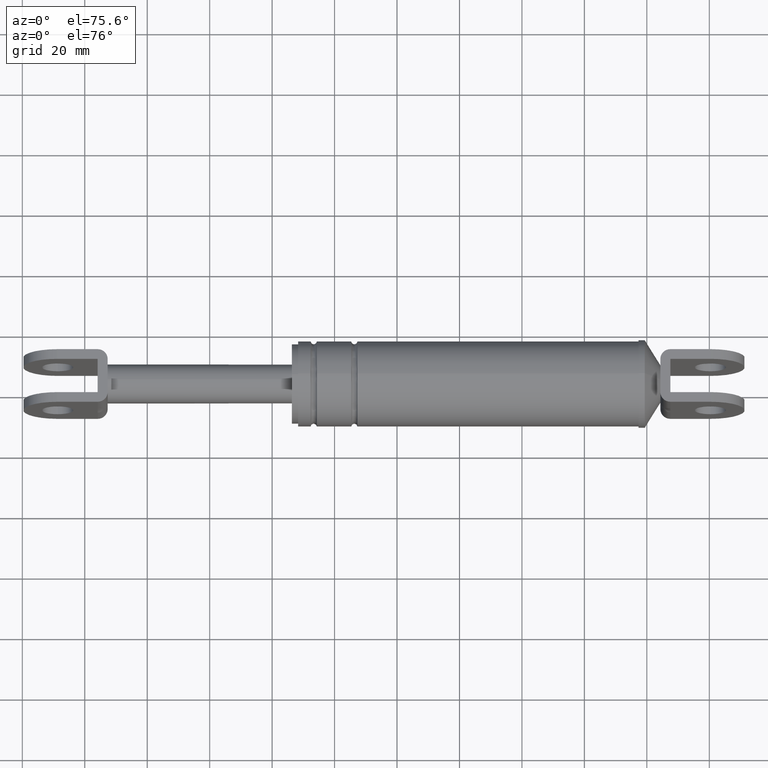
[diagram: clean part render]
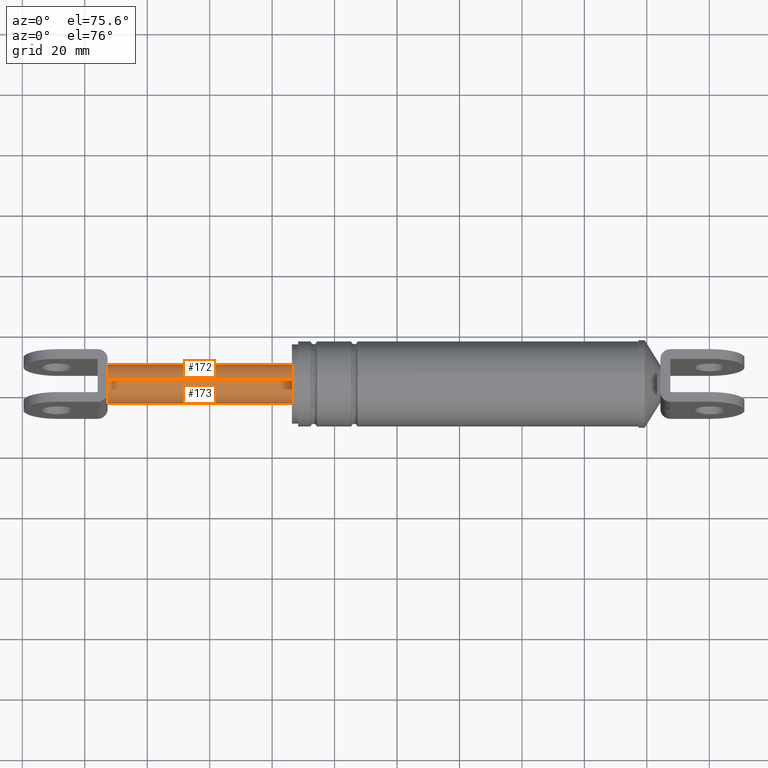
[diagram: same view with one multi-face feature highlighted, each face labeled with its STEP entity id]
A machine part, auxiliary view. The highlighted faces form ONE feature: a constant-radius fillet chain: 2 tangent blend faces with common blend radius 6.25 mm. The faces share edges in the B-rep.
Their STEP definitions:
[1] entity #173 (Cylinder):
#173=ADVANCED_FACE('',(#797),#796,.T.);
#796=CYLINDRICAL_SURFACE('',#1384,6.25000000000E+000);
#797=FACE_OUTER_BOUND('',#1385,.T.);
#1381=CARTESIAN_POINT('',(0.00000000000E+000,0.00000000000E+000,1.86691405396E+002));
#1382=DIRECTION('',(1.00000000000E+000,-0.00000000000E+000,-0.00000000000E+000));
#1383=DIRECTION('',(-0.00000000000E+000,-0.00000000000E+000,-1.00000000000E+000));
#1384=AXIS2_PLACEMENT_3D('',#1381,#1382,#1383);
#1385=EDGE_LOOP('',(#1694,#1695,#1696,#1697,#1698,#1699));
#1694=ORIENTED_EDGE('',*,*,#1832,.F.);
#1695=ORIENTED_EDGE('',*,*,#1811,.F.);
#1696=ORIENTED_EDGE('',*,*,#1842,.F.);
#1697=ORIENTED_EDGE('',*,*,#1860,.T.);
#1698=ORIENTED_EDGE('',*,*,#1852,.T.);
#1699=ORIENTED_EDGE('',*,*,#1861,.F.);
#1811=EDGE_CURVE('',#2542,#2549,#2550,.T.);
#1832=EDGE_CURVE('',#2549,#2691,#2692,.T.);
#1842=EDGE_CURVE('',#2752,#2542,#2759,.T.);
#1852=EDGE_CURVE('',#2822,#2823,#2824,.T.);
#1860=EDGE_CURVE('',#2752,#2822,#2874,.T.);
#1861=EDGE_CURVE('',#2691,#2823,#2880,.T.);
#2542=VERTEX_POINT('',#3336);
#2549=VERTEX_POINT('',#3341);
#2550=CIRCLE('',#3345,6.25000000000E+000);
#2691=VERTEX_POINT('',#3438);
#2692=CIRCLE('',#3442,6.25000000000E+000);
#2752=VERTEX_POINT('',#3477);
#2759=CIRCLE('',#3485,6.25000000000E+000);
#2822=VERTEX_POINT('',#3517);
#2823=VERTEX_POINT('',#3518);
#2824=CIRCLE('',#3522,6.25000000000E+000);
#2874=(BOUNDED_CURVE() B_SPLINE_CURVE(1,(#3548,#3549),.UNSPECIFIED.,.F.,.F.) B_SPLINE_CURVE_WITH_KNOTS((2,2),(8.33333332085E-002,9.16666666222E-001),.UNSPECIFIED.) CURVE() GEOMETRIC_REPRESENTATION_ITEM() RATIONAL_B_SPLINE_CURVE((1.00000000000E+000,1.00000000000E+000)) REPRESENTATION_ITEM('') );
#2880=(BOUNDED_CURVE() B_SPLINE_CURVE(1,(#3550,#3551),.UNSPECIFIED.,.F.,.F.) B_SPLINE_CURVE_WITH_KNOTS((2,2),(8.33333333333E-002,9.16666666667E-001),.UNSPECIFIED.) CURVE() GEOMETRIC_REPRESENTATION_ITEM() RATIONAL_B_SPLINE_CURVE((7.50000000000E-001,7.50000000000E-001)) REPRESENTATION_ITEM('') );
#3336=CARTESIAN_POINT('',(1.27328359882E+002,-5.49999700000E+000,1.83722814316E+002));
#3341=CARTESIAN_POINT('',(1.27328359882E+002,-5.49999700000E+000,1.89659996476E+002));
#3342=CARTESIAN_POINT('',(1.27328359882E+002,0.00000000000E+000,1.86691405396E+002));
#3343=DIRECTION('',(-1.00000000000E+000,0.00000000000E+000,0.00000000000E+000));
#3344=DIRECTION('',(-0.00000000000E+000,-0.00000000000E+000,-1.00000000000E+000));
#3345=AXIS2_PLACEMENT_3D('',#3342,#3343,#3344);
#3438=CARTESIAN_POINT('',(1.27328359882E+002,7.89135217432E-007,1.92941405396E+002));
#3439=CARTESIAN_POINT('',(1.27328359882E+002,0.00000000000E+000,1.86691405396E+002));
#3440=DIRECTION('',(-1.00000000000E+000,0.00000000000E+000,0.00000000000E+000));
#3441=DIRECTION('',(-0.00000000000E+000,-0.00000000000E+000,-1.00000000000E+000));
#3442=AXIS2_PLACEMENT_3D('',#3439,#3440,#3441);
#3477=CARTESIAN_POINT('',(1.27328359882E+002,4.27336897956E-012,1.80441405396E+002));
#3482=CARTESIAN_POINT('',(1.27328359882E+002,0.00000000000E+000,1.86691405396E+002));
#3483=DIRECTION('',(-1.00000000000E+000,0.00000000000E+000,0.00000000000E+000));
#3484=DIRECTION('',(-0.00000000000E+000,8.79999520000E-001,-4.74974572793E-001));
#3485=AXIS2_PLACEMENT_3D('',#3482,#3483,#3484);
#3517=CARTESIAN_POINT('',(1.86328359882E+002,0.00000000000E+000,1.80441405396E+002));
#3518=CARTESIAN_POINT('',(1.86328359882E+002,0.00000000000E+000,1.92941405396E+002));
#3519=CARTESIAN_POINT('',(1.86328359882E+002,0.00000000000E+000,1.86691405396E+002));
#3520=DIRECTION('',(-1.00000000000E+000,0.00000000000E+000,0.00000000000E+000));
#3521=DIRECTION('',(0.00000000000E+000,-1.22460635382E-016,1.00000000000E+000));
#3522=AXIS2_PLACEMENT_3D('',#3519,#3520,#3521);
#3548=CARTESIAN_POINT('',(1.27328359873E+002,0.00000000000E+000,1.80441405396E+002));
#3549=CARTESIAN_POINT('',(1.86328359850E+002,0.00000000000E+000,1.80441405396E+002));
#3550=CARTESIAN_POINT('',(1.27328359882E+002,0.00000000000E+000,1.92941405396E+002));
#3551=CARTESIAN_POINT('',(1.86328359882E+002,0.00000000000E+000,1.92941405396E+002));
[2] entity #172 (Cylinder):
#172=ADVANCED_FACE('',(#787),#786,.T.);
#786=CYLINDRICAL_SURFACE('',#1379,6.25000000000E+000);
#787=FACE_OUTER_BOUND('',#1380,.T.);
#1376=CARTESIAN_POINT('',(0.00000000000E+000,0.00000000000E+000,1.86691405396E+002));
#1377=DIRECTION('',(1.00000000000E+000,-0.00000000000E+000,-0.00000000000E+000));
#1378=DIRECTION('',(-0.00000000000E+000,-0.00000000000E+000,-1.00000000000E+000));
#1379=AXIS2_PLACEMENT_3D('',#1376,#1377,#1378);
#1380=EDGE_LOOP('',(#1688,#1689,#1690,#1691,#1692,#1693));
#1688=ORIENTED_EDGE('',*,*,#1853,.T.);
#1689=ORIENTED_EDGE('',*,*,#1860,.F.);
#1690=ORIENTED_EDGE('',*,*,#1841,.F.);
#1691=ORIENTED_EDGE('',*,*,#1823,.F.);
#1692=ORIENTED_EDGE('',*,*,#1833,.F.);
#1693=ORIENTED_EDGE('',*,*,#1861,.T.);
#1823=EDGE_CURVE('',#2625,#2618,#2632,.T.);
#1833=EDGE_CURVE('',#2691,#2625,#2698,.T.);
#1841=EDGE_CURVE('',#2618,#2752,#2753,.T.);
#1853=EDGE_CURVE('',#2823,#2822,#2830,.T.);
#1860=EDGE_CURVE('',#2752,#2822,#2874,.T.);
#1861=EDGE_CURVE('',#2691,#2823,#2880,.T.);
#2618=VERTEX_POINT('',#3392);
#2625=VERTEX_POINT('',#3397);
#2632=CIRCLE('',#3405,6.25000000000E+000);
#2691=VERTEX_POINT('',#3438);
#2698=CIRCLE('',#3446,6.25000000000E+000);
#2752=VERTEX_POINT('',#3477);
#2753=CIRCLE('',#3481,6.25000000000E+000);
#2822=VERTEX_POINT('',#3517);
#2823=VERTEX_POINT('',#3518);
#2830=CIRCLE('',#3526,6.25000000000E+000);
#2874=(BOUNDED_CURVE() B_SPLINE_CURVE(1,(#3548,#3549),.UNSPECIFIED.,.F.,.F.) B_SPLINE_CURVE_WITH_KNOTS((2,2),(8.33333332085E-002,9.16666666222E-001),.UNSPECIFIED.) CURVE() GEOMETRIC_REPRESENTATION_ITEM() RATIONAL_B_SPLINE_CURVE((1.00000000000E+000,1.00000000000E+000)) REPRESENTATION_ITEM('') );
#2880=(BOUNDED_CURVE() B_SPLINE_CURVE(1,(#3550,#3551),.UNSPECIFIED.,.F.,.F.) B_SPLINE_CURVE_WITH_KNOTS((2,2),(8.33333333333E-002,9.16666666667E-001),.UNSPECIFIED.) CURVE() GEOMETRIC_REPRESENTATION_ITEM() RATIONAL_B_SPLINE_CURVE((7.50000000000E-001,7.50000000000E-001)) REPRESENTATION_ITEM('') );
#3392=CARTESIAN_POINT('',(1.27328359882E+002,5.49999700000E+000,1.83722814316E+002));
#3397=CARTESIAN_POINT('',(1.27328359882E+002,5.49999700000E+000,1.89659996476E+002));
#3402=CARTESIAN_POINT('',(1.27328359882E+002,0.00000000000E+000,1.86691405396E+002));
#3403=DIRECTION('',(-1.00000000000E+000,0.00000000000E+000,0.00000000000E+000));
#3404=DIRECTION('',(-0.00000000000E+000,-0.00000000000E+000,-1.00000000000E+000));
#3405=AXIS2_PLACEMENT_3D('',#3402,#3403,#3404);
#3438=CARTESIAN_POINT('',(1.27328359882E+002,7.89135217432E-007,1.92941405396E+002));
#3443=CARTESIAN_POINT('',(1.27328359882E+002,0.00000000000E+000,1.86691405396E+002));
#3444=DIRECTION('',(-1.00000000000E+000,0.00000000000E+000,0.00000000000E+000));
#3445=DIRECTION('',(-0.00000000000E+000,-0.00000000000E+000,-1.00000000000E+000));
#3446=AXIS2_PLACEMENT_3D('',#3443,#3444,#3445);
#3477=CARTESIAN_POINT('',(1.27328359882E+002,4.27336897956E-012,1.80441405396E+002));
#3478=CARTESIAN_POINT('',(1.27328359882E+002,0.00000000000E+000,1.86691405396E+002));
#3479=DIRECTION('',(-1.00000000000E+000,0.00000000000E+000,0.00000000000E+000));
#3480=DIRECTION('',(-0.00000000000E+000,8.79999520000E-001,-4.74974572793E-001));
#3481=AXIS2_PLACEMENT_3D('',#3478,#3479,#3480);
#3517=CARTESIAN_POINT('',(1.86328359882E+002,0.00000000000E+000,1.80441405396E+002));
#3518=CARTESIAN_POINT('',(1.86328359882E+002,0.00000000000E+000,1.92941405396E+002));
#3523=CARTESIAN_POINT('',(1.86328359882E+002,0.00000000000E+000,1.86691405396E+002));
#3524=DIRECTION('',(-1.00000000000E+000,0.00000000000E+000,0.00000000000E+000));
#3525=DIRECTION('',(0.00000000000E+000,-1.22460635382E-016,1.00000000000E+000));
#3526=AXIS2_PLACEMENT_3D('',#3523,#3524,#3525);
#3548=CARTESIAN_POINT('',(1.27328359873E+002,0.00000000000E+000,1.80441405396E+002));
#3549=CARTESIAN_POINT('',(1.86328359850E+002,0.00000000000E+000,1.80441405396E+002));
#3550=CARTESIAN_POINT('',(1.27328359882E+002,0.00000000000E+000,1.92941405396E+002));
#3551=CARTESIAN_POINT('',(1.86328359882E+002,0.00000000000E+000,1.92941405396E+002));